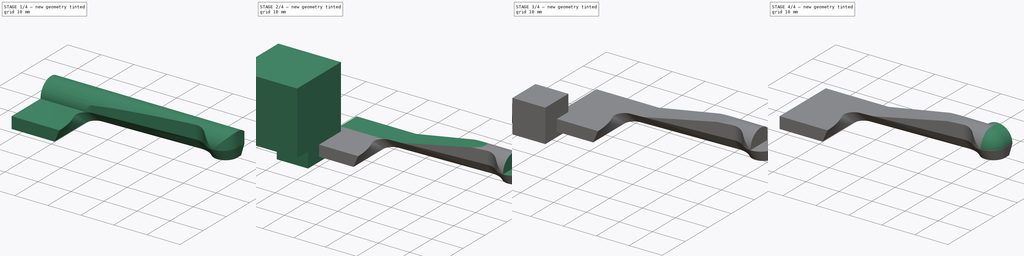
[diagram: build sequence overview — one tinted view per stage of 4, left to right]
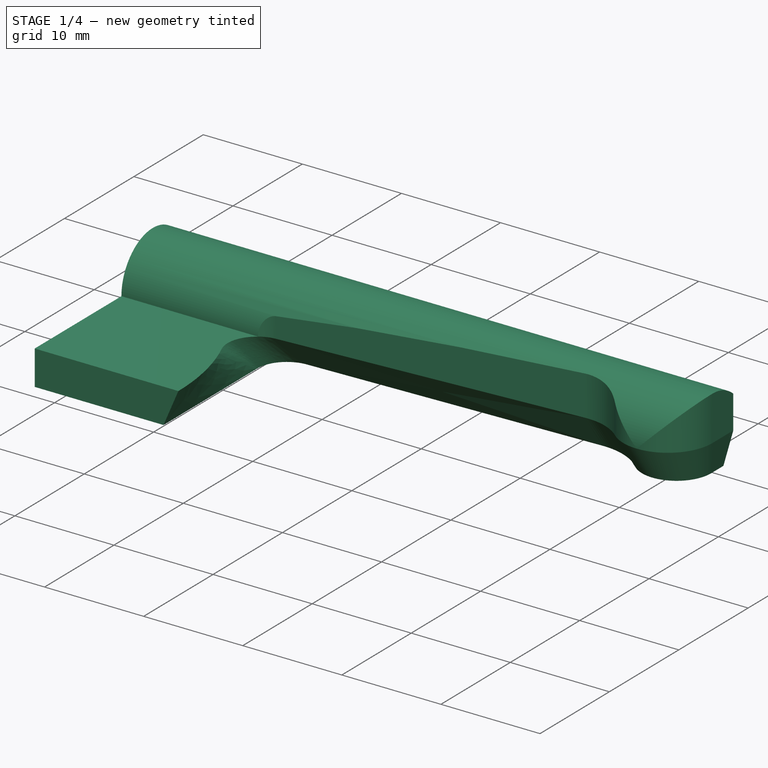
[diagram: stage 1 of 4 — iso view after this stage's code; geometry added in this stage tinted green]
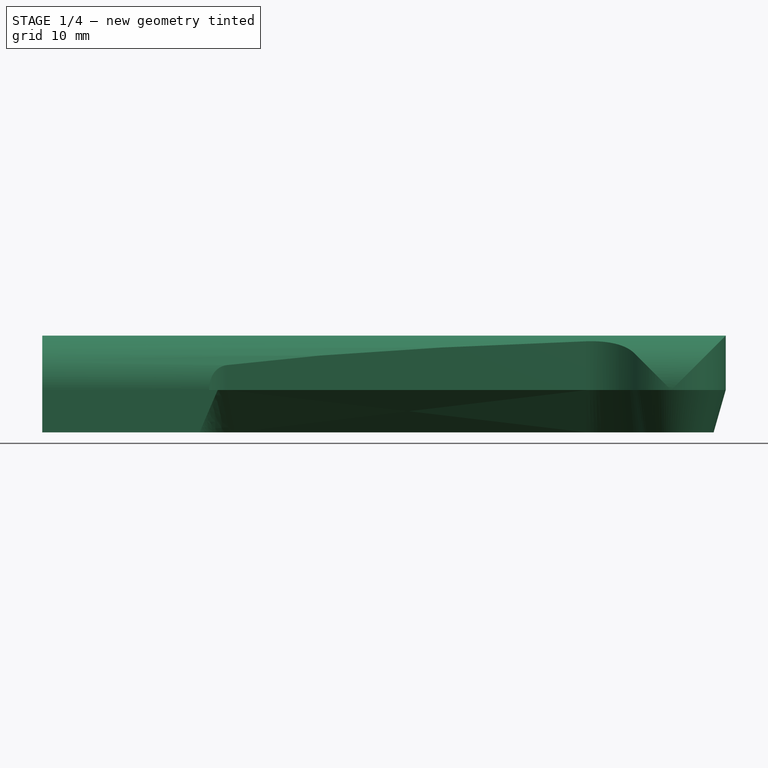
[diagram: stage 1 of 4 — front view after this stage's code; geometry added in this stage tinted green]
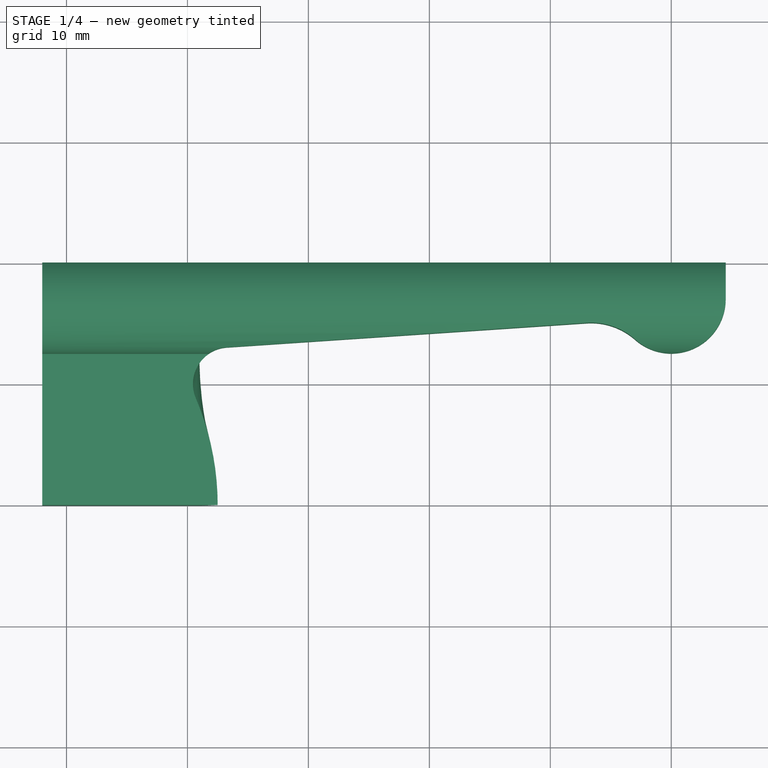
[diagram: stage 1 of 4 — top view after this stage's code; geometry added in this stage tinted green]
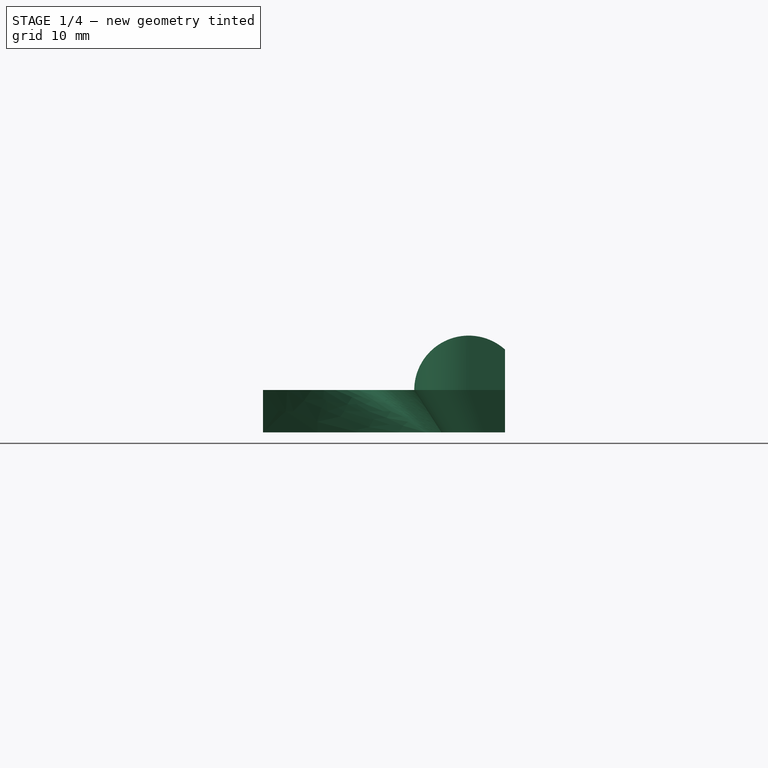
[diagram: stage 1 of 4 — right view after this stage's code; geometry added in this stage tinted green]
FCSTD DOCUMENT  (FreeCAD 0.18R16093 (Git))
Label: Spurhebel
License: All rights reserved
LicenseURL: http://en.wikipedia.org/wiki/All_rights_reserved
objects: Sketcher::SketchObject×4, Part::Box×2, Part::Cut×2, PartDesign::Pocket×2, PartDesign::AdditiveLoft×1, Part::Sphere×1, Part::Cylinder×1, Part::MultiFuse×1, PartDesign::Pad×1, PartDesign::Plane×1, PartDesign::Body×1
note: 21 computed .brp shape members not serialized (recipe doc carries the construction recipe); baked Part::Feature solids carry a one-line shape summary decoded from their .brp

FEATURE [Sketcher::SketchObject] Sketch
  MapMode = 5
  Support = -> [XY_Plane]
  sketch-geometry (14):
    g0: ArcOfCircle CenterX=23.4545 CenterY=10.0068 CenterZ=0 NormalX=0 NormalY=0 NormalZ=1 AngleXU=0 Radius=3 StartAngle=1.63793 EndAngle=3.54486
    g1: LineSegment StartX=8 StartY=20 StartZ=0 EndX=23.2533 EndY=20 EndZ=0
    g2: LineSegment StartX=23.2533 StartY=20 StartZ=0 EndX=53 EndY=20 EndZ=0
    g3: LineSegment StartX=23.2533 StartY=13 StartZ=0 EndX=53 EndY=15 EndZ=0
    g4: LineSegment StartX=8 StartY=0 StartZ=0 EndX=22.5 EndY=0 EndZ=0
    g5: LineSegment [constr] StartX=23.2533 StartY=13 StartZ=0 EndX=23.2533 EndY=20 EndZ=0
    g6: LineSegment [constr] StartX=0 StartY=17 StartZ=0 EndX=60 EndY=17 EndZ=0
    g7: LineSegment StartX=8 StartY=20 StartZ=0 EndX=8 EndY=0 EndZ=0
    g8: ArcOfCircle CenterX=4e-16 CenterY=0 CenterZ=0 NormalX=0 NormalY=0 NormalZ=1 AngleXU=0 Radius=22.5 StartAngle=0 EndAngle=0.403263
    g9: ArcOfCircle CenterX=53.3694 CenterY=9.50651 CenterZ=0 NormalX=0 NormalY=0 NormalZ=1 AngleXU=0 Radius=5.50589 StartAngle=0.846412 EndAngle=1.63793
    g10: ArcOfCircle CenterX=60 CenterY=17 CenterZ=0 NormalX=0 NormalY=0 NormalZ=1 AngleXU=0 Radius=4.5 StartAngle=3.988 EndAngle=6.28319
    g11: LineSegment StartX=53 StartY=20 StartZ=0 EndX=64.5 EndY=20 EndZ=0
    g12: LineSegment [constr] StartX=53 StartY=20 StartZ=0 EndX=53 EndY=15 EndZ=0
    g13: LineSegment StartX=64.5 StartY=20 StartZ=0 EndX=64.5 EndY=17 EndZ=0
  constraints (39):
    c: Horizontal(g1)
    c: Coincident(g2,g1)
    c: Tangent(g3,g0) = 1.5708
    c: Coincident(g5,g0)
    c: Coincident(g5,g1)
    c: Perpendicular(g1,g5)
    c: DistanceY(g5,g5) = 7
    c: DistanceY(g-1,g1) = 20
    c: PointOnObject(g6,g-2)
    c: DistanceX(g-1,g1) = 8
    c: DistanceX(g-1,g3) = 53
    c: Vertical(g7)
    c: PointOnObject(g7,g-1)
    c: Coincident(g7,g4)
    c: Coincident(g7,g1)
    c: Coincident(g8,g4)
    c: DistanceX(g-1,g4) = 22.5
    c: Tangent(g8,g0) = 1.5708
    c: PointOnObject(g4,g-1)
    c: Perpendicular(g8,g4)
    c: Radius(g8) = 22.5
    c: Radius(g0) = 3
    c: Tangent(g10,g9) = 1.5708
    c: Tangent(g9,g3) = 1.5708
    c: Coincident(g10,g6)
    c: DistanceX(g6,g6) = 60
    c: Radius(g10) = 4.5
    c: DistanceY(g3,g2) = 5
    c: Horizontal(g11)
    c: Coincident(g11,g2)
    c: Coincident(g12,g2)
    c: Coincident(g12,g3)
    c: Vertical(g12)
    c: Coincident(g13,g11)
    c: Tangent(g13,g10) = 1.5708
    c: Vertical(g13)
    c: Horizontal(g2)
    c: Horizontal(g6)
    c: DistanceY(g6,g1) = 3
FEATURE [Sketcher::SketchObject] Sketch001
  MapMode = 5
  Placement = pos=(0,0,-3.5) rot=(0,0,1;0rad)
  sketch-geometry (14):
    g0: ArcOfCircle CenterX=24 CenterY=13.5018 CenterZ=0 NormalX=0 NormalY=0 NormalZ=1 AngleXU=0 Radius=3 StartAngle=1.60514 EndAngle=3.14159
    g1: LineSegment StartX=8 StartY=20 StartZ=0 EndX=23.897 EndY=20 EndZ=0
    g2: LineSegment StartX=23.897 StartY=20 StartZ=0 EndX=53 EndY=20 EndZ=0
    g3: LineSegment StartX=23.897 StartY=16.5 StartZ=0 EndX=53 EndY=17.5 EndZ=0
    g4: LineSegment StartX=8 StartY=0 StartZ=0 EndX=21 EndY=0 EndZ=0
    g5: LineSegment [constr] StartX=23.897 StartY=16.5 StartZ=0 EndX=23.897 EndY=20 EndZ=0
    g6: LineSegment [constr] StartX=0 StartY=18.25 StartZ=0 EndX=60 EndY=18.25 EndZ=0
    g7: LineSegment StartX=8 StartY=20 StartZ=0 EndX=8 EndY=0 EndZ=0
    g8: ArcOfCircle CenterX=53.2142 CenterY=11.2659 CenterZ=0 NormalX=0 NormalY=0 NormalZ=1 AngleXU=0 Radius=6.23783 StartAngle=0.799802 EndAngle=1.60514
    g9: ArcOfCircle CenterX=60 CenterY=18.25 CenterZ=0 NormalX=0 NormalY=0 NormalZ=1 AngleXU=0 Radius=3.5 StartAngle=3.94139 EndAngle=6.28319
    g10: LineSegment StartX=53 StartY=20 StartZ=0 EndX=63.5 EndY=20 EndZ=0
    g11: LineSegment [constr] StartX=53 StartY=20 StartZ=0 EndX=53 EndY=17.5 EndZ=0
    g12: LineSegment StartX=63.5 StartY=20 StartZ=0 EndX=63.5 EndY=18.25 EndZ=0
    g13: LineSegment StartX=21 StartY=0 StartZ=0 EndX=21 EndY=13.5018 EndZ=0
  constraints (37):
    c: Horizontal(g1)
    c: Coincident(g2,g1)
    c: Tangent(g3,g0) = 1.5708
    c: Coincident(g5,g0)
    c: Coincident(g5,g1)
    c: Perpendicular(g1,g5)
    c: DistanceY(g5,g5) = 3.5
    c: Symmetric(g1,g0,g6)
    c: DistanceY(g-1,g1) = 20
    c: PointOnObject(g6,g-2)
    c: DistanceX(g-1,g1) = 8
    c: DistanceX(g-1,g3) = 53
    c: Vertical(g7)
    c: PointOnObject(g7,g-1)
    c: Coincident(g7,g4)
    c: Coincident(g7,g1)
    c: DistanceX(g-1,g4) = 21
    c: PointOnObject(g4,g-1)
    c: Radius(g0) = 3
    c: Tangent(g9,g8) = 1.5708
    c: Tangent(g8,g3) = 1.5708
    c: Coincident(g9,g6)
    c: DistanceX(g6,g6) = 60
    c: Radius(g9) = 3.5
    c: DistanceY(g3,g2) = 2.5
    c: Horizontal(g10)
    c: Coincident(g10,g2)
    c: Coincident(g11,g2)
    c: Coincident(g11,g3)
    c: Vertical(g11)
    c: Coincident(g12,g10)
    c: Tangent(g12,g9) = 1.5708
    c: Vertical(g12)
    c: Horizontal(g2)
    c: Coincident(g13,g4)
    c: Vertical(g13)
    c: Tangent(g13,g0) = 1.5708
FEATURE [PartDesign::AdditiveLoft] AdditiveLoft
  Closed = false
  Placement = pos=(0,0,-3.5) rot=(0,0,1;0rad)
  Profile = -> Sketch001
  Ruled = false
  Sections = -> [Sketch]
FEATURE [PartDesign::Pad] Pad
  BaseFeature = -> AdditiveLoft
  Length = 10
  Length2 = 100
  Placement = pos=(0,0,-3.5) rot=(0,0,1;0rad)
  Profile = -> AdditiveLoft [Face3]
  Type = 0
FEATURE [PartDesign::Plane] DatumPlane
  AttachmentOffset = pos=(0,0,120) rot=(0,0,1;0rad)
  Length = 34.899
  MapMode = 5
  Placement = pos=(120,-2.66e-14,2.66e-14) rot=(0.57735,0.57735,0.57735;2.0944rad)
  ResizeMode = 0
  Support = -> [YZ_Plane]
  Width = 24.899
FEATURE [Sketcher::SketchObject] Sketch002
  MapMode = 5
  Placement = pos=(120,-2.66e-14,2.66e-14) rot=(0.57735,0.57735,0.57735;2.0944rad)
  Support = -> [DatumPlane]
  sketch-geometry (5):
    g0: ArcOfCircle CenterX=17 CenterY=0 CenterZ=0 NormalX=0 NormalY=0 NormalZ=1 AngleXU=0 Radius=4.5 StartAngle=0 EndAngle=3.14159
    g1: LineSegment StartX=0 StartY=0 StartZ=0 EndX=12.5 EndY=6e-16 EndZ=0
    g2: LineSegment StartX=0 StartY=0 StartZ=0 EndX=0 EndY=40 EndZ=0
    g3: LineSegment StartX=0 StartY=40 StartZ=0 EndX=21.5 EndY=40 EndZ=0
    g4: LineSegment StartX=21.5 StartY=40 StartZ=0 EndX=21.5 EndY=0 EndZ=0
  constraints (14):
    c: PointOnObject(g0,g-1)
    c: PointOnObject(g0,g-1)
    c: PointOnObject(g0,g-1)
    c: Radius(g0) = 4.5
    c: DistanceX(g-1,g0) = 12.5
    c: Coincident(g1,g-1)
    c: Coincident(g1,g0)
    c: Coincident(g2,g1)
    c: PointOnObject(g2,g-2)
    c: Coincident(g3,g2)
    c: Horizontal(g3)
    c: Coincident(g4,g3)
    c: Tangent(g0,g4) = 1.5708
    c: DistanceY(g4,g4) = 40
FEATURE [PartDesign::Pocket] Pocket
  BaseFeature = -> Pad
  Length = 109
  Length2 = 100
  Placement = pos=(0,0,-3.5) rot=(0,0,1;0rad)
  Profile = -> Sketch002
  Type = 1
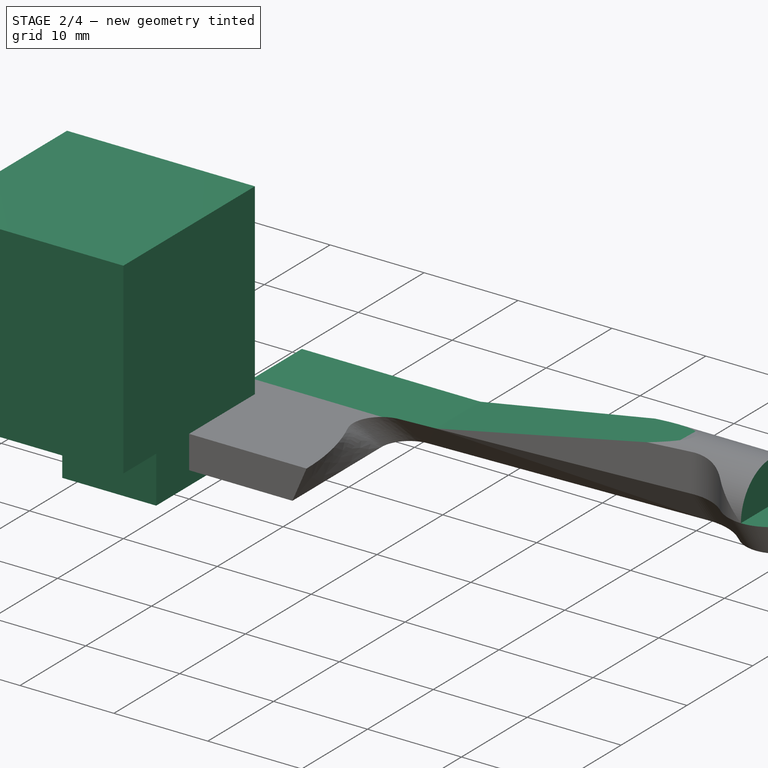
[diagram: stage 2 of 4 — iso view after this stage's code; geometry added in this stage tinted green]
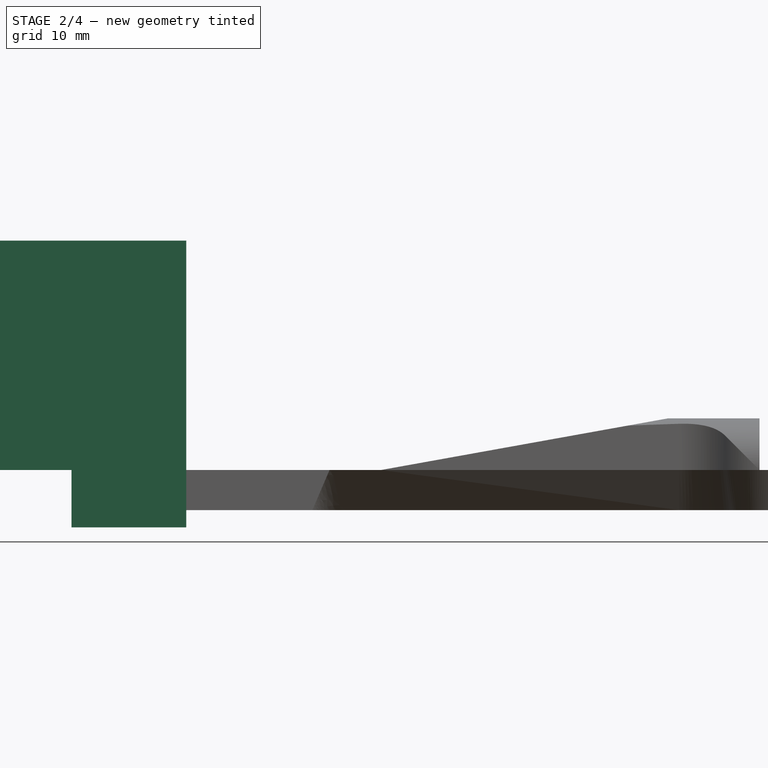
[diagram: stage 2 of 4 — front view after this stage's code; geometry added in this stage tinted green]
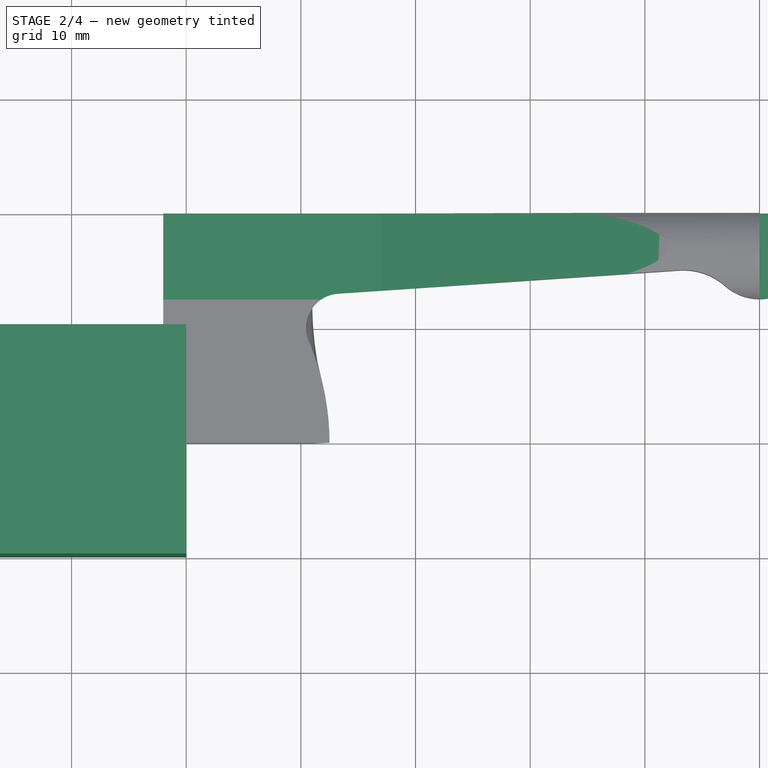
[diagram: stage 2 of 4 — top view after this stage's code; geometry added in this stage tinted green]
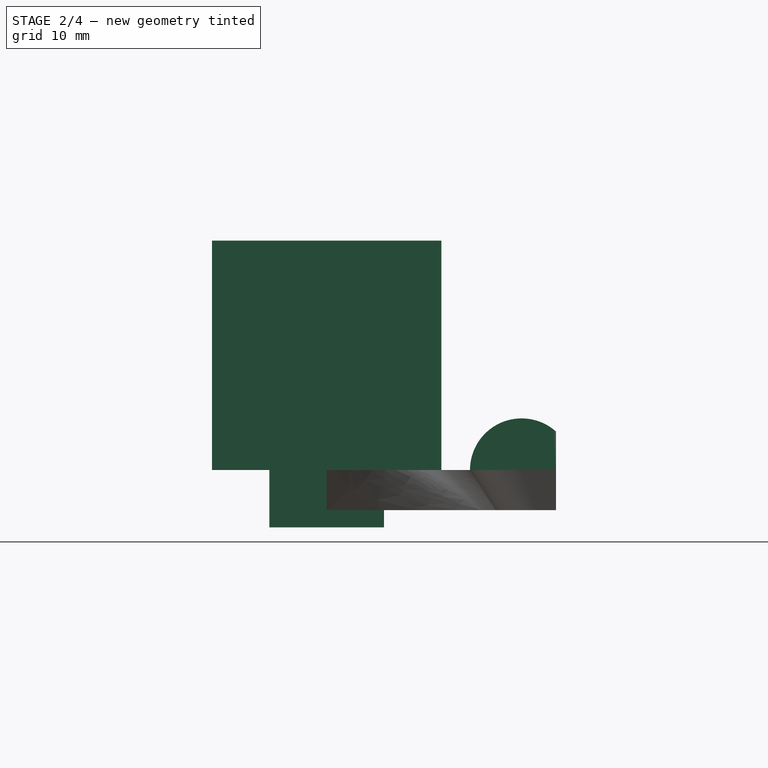
[diagram: stage 2 of 4 — right view after this stage's code; geometry added in this stage tinted green]
FEATURE [Part::Box] Box  label="Cube"
  AttacherType = Attacher::AttachEngine3D
  Height = 20
  Length = 20
  Placement = pos=(-10,-10,0) rot=(0,0,1;0rad)
  Width = 20
FEATURE [Part::Box] Box001  label="Cube001"
  AttacherType = Attacher::AttachEngine3D
  Height = 10
  Length = 10
  Placement = pos=(0,-5,-5) rot=(0,0,1;0rad)
  Width = 10
FEATURE [Sketcher::SketchObject] Sketch003
  MapMode = 5
  Placement = pos=(0,0,0) rot=(1,0,0;1.5708rad)
  Support = -> [XZ_Plane]
  sketch-geometry (8):
    g0: LineSegment StartX=27 StartY=0 StartZ=0 EndX=52 EndY=4.5 EndZ=0
    g1: LineSegment StartX=0 StartY=20 StartZ=0 EndX=110 EndY=20 EndZ=0
    g2: LineSegment StartX=0 StartY=0 StartZ=0 EndX=27 EndY=0 EndZ=0
    g3: LineSegment StartX=0 StartY=20 StartZ=0 EndX=0 EndY=0 EndZ=0
    g4: LineSegment StartX=52 StartY=4.5 StartZ=0 EndX=60 EndY=4.5 EndZ=0
    g5: LineSegment StartX=60 StartY=4.5 StartZ=0 EndX=60 EndY=0 EndZ=0
    g6: LineSegment StartX=60 StartY=0 StartZ=0 EndX=110 EndY=0 EndZ=0
    g7: LineSegment StartX=110 StartY=0 StartZ=0 EndX=110 EndY=20 EndZ=0
  constraints (23):
    c: PointOnObject(g0,g-1)
    c: Horizontal(g1)
    c: PointOnObject(g1,g-2)
    c: Coincident(g2,g-1)
    c: Coincident(g2,g0)
    c: Coincident(g3,g1)
    c: Coincident(g3,g2)
    c: DistanceX(g1,g1) = 110
    c: DistanceY(g2,g0) = 4.5
    c: DistanceY(g2,g1) = 20
    c: DistanceX(g2,g2) = 27
    c: Coincident(g4,g0)
    c: Horizontal(g4)
    c: Coincident(g5,g4)
    c: Vertical(g5)
    c: Coincident(g6,g5)
    c: Horizontal(g6)
    c: Coincident(g7,g6)
    c: Vertical(g7)
    c: Coincident(g7,g1)
    c: PointOnObject(g5,g-1)
    c: DistanceX(g2,g4) = 60
    c: DistanceX(g4,g4) = 8
FEATURE [PartDesign::Pocket] Pocket001
  BaseFeature = -> Pocket
  Length = 5
  Length2 = 100
  Placement = pos=(0,0,-3.5) rot=(0,0,1;0rad)
  Profile = -> Sketch003
  Type = 1
FEATURE [PartDesign::Body] Body
  Group = -> [Sketch,Sketch001,AdditiveLoft,Pad,DatumPlane,Sketch002,Pocket,Sketch003,Pocket001]
  Origin = -> Origin
  Tip = -> Pocket001
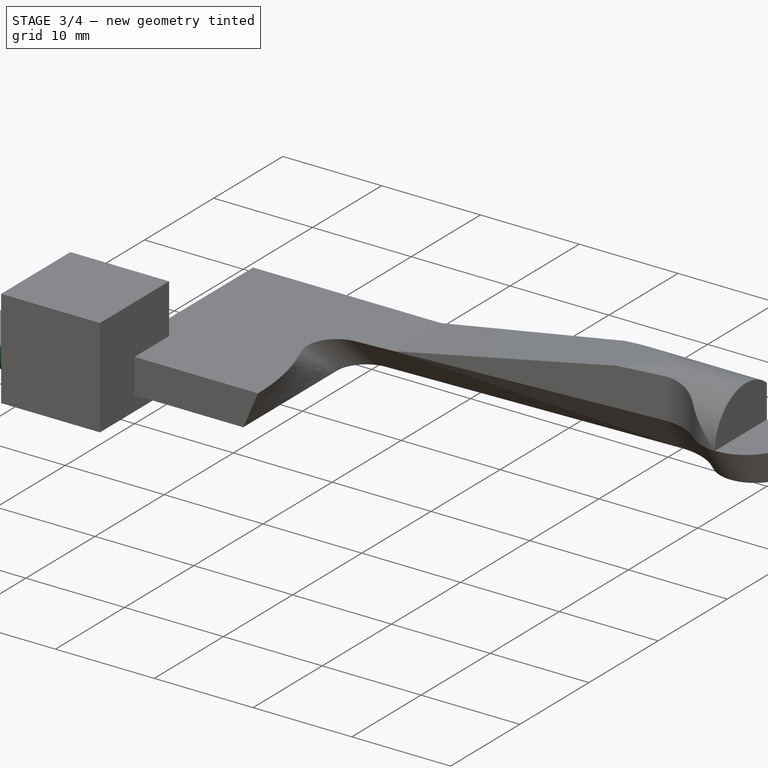
[diagram: stage 3 of 4 — iso view after this stage's code; geometry added in this stage tinted green]
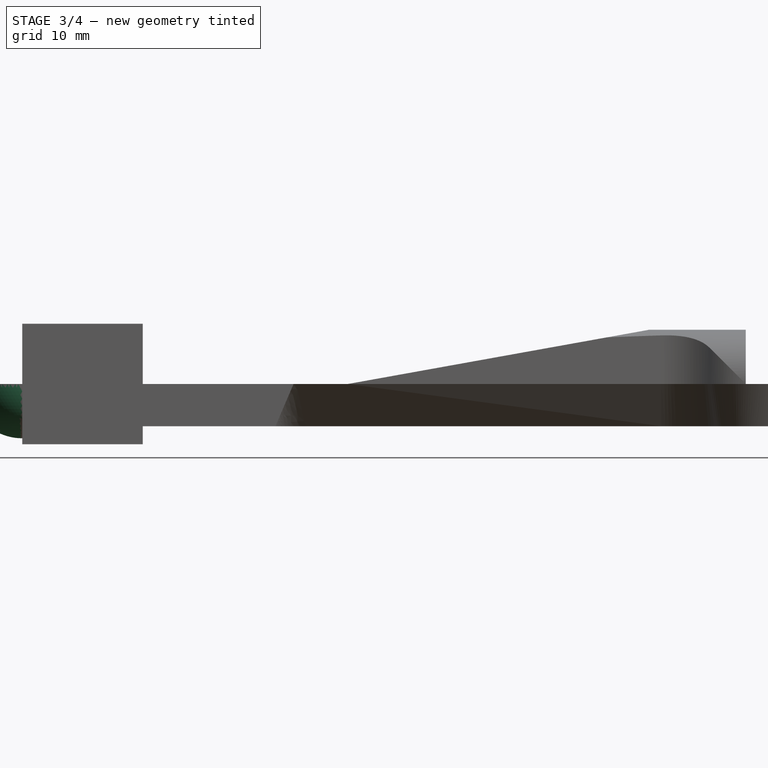
[diagram: stage 3 of 4 — front view after this stage's code; geometry added in this stage tinted green]
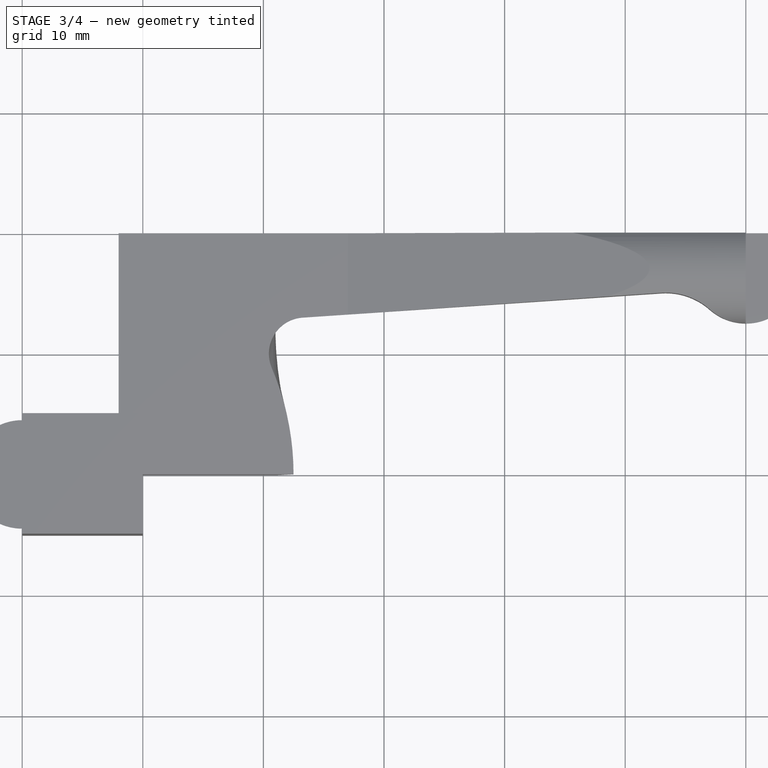
[diagram: stage 3 of 4 — top view after this stage's code; geometry added in this stage tinted green]
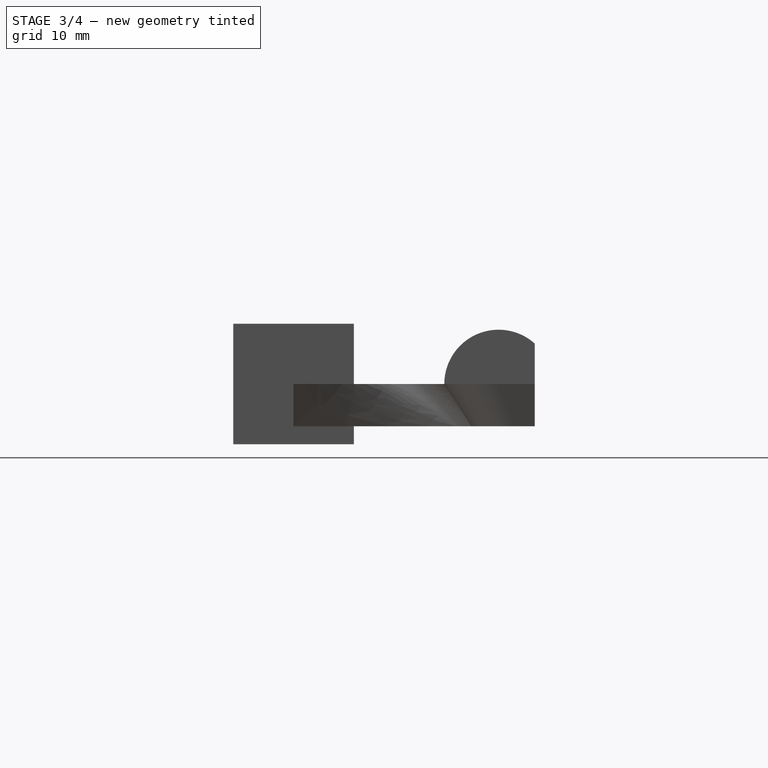
[diagram: stage 3 of 4 — right view after this stage's code; geometry added in this stage tinted green]
FEATURE [Part::Sphere] Sphere
  Angle1 = -90
  Angle2 = 90
  Angle3 = 360
  AttacherType = Attacher::AttachEngine3D
  Radius = 4.5
FEATURE [Part::Cut] Cut
  Base = -> Sphere
  Tool = -> Box
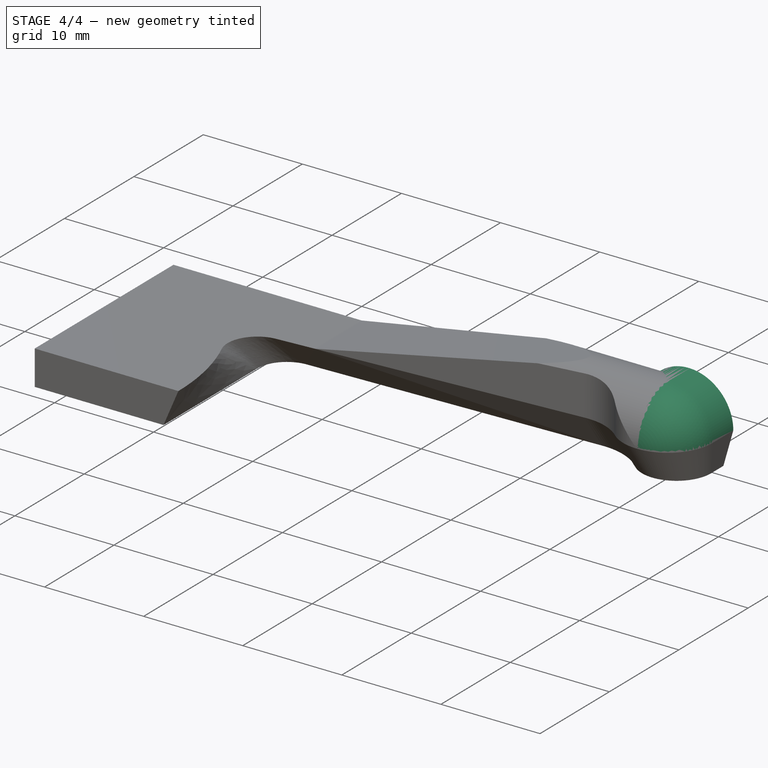
[diagram: stage 4 of 4 — iso view after this stage's code; geometry added in this stage tinted green]
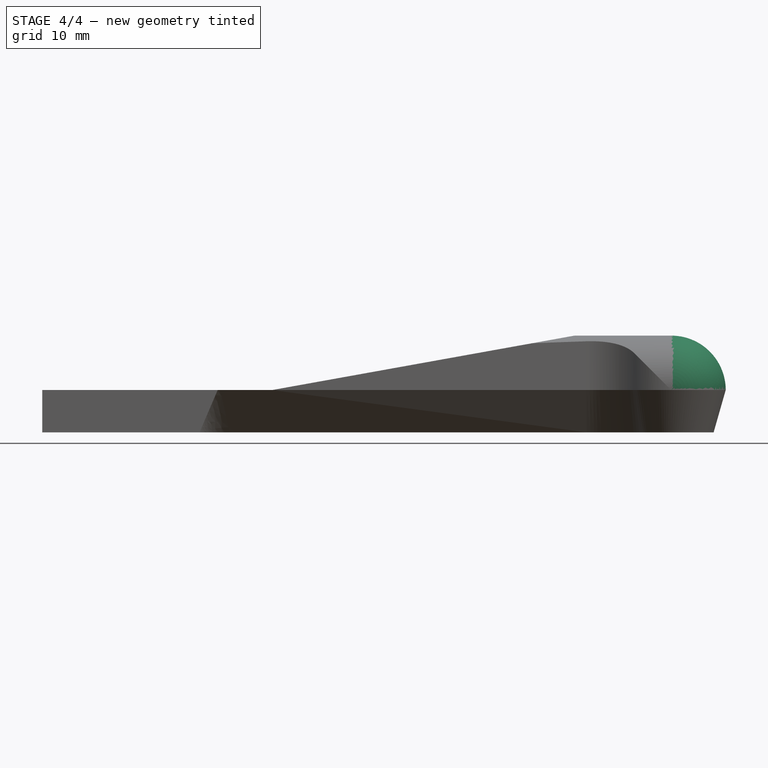
[diagram: stage 4 of 4 — front view after this stage's code; geometry added in this stage tinted green]
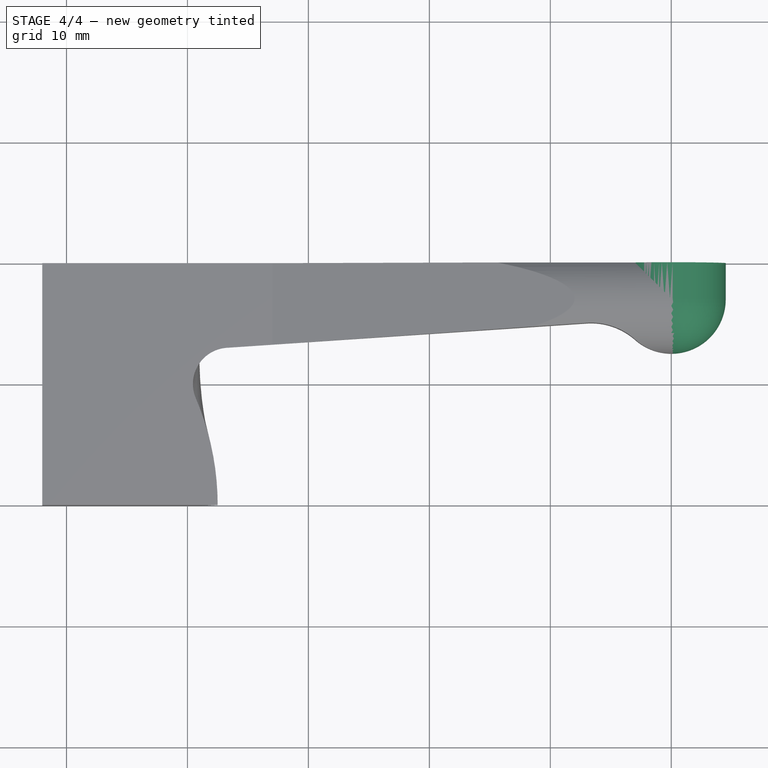
[diagram: stage 4 of 4 — top view after this stage's code; geometry added in this stage tinted green]
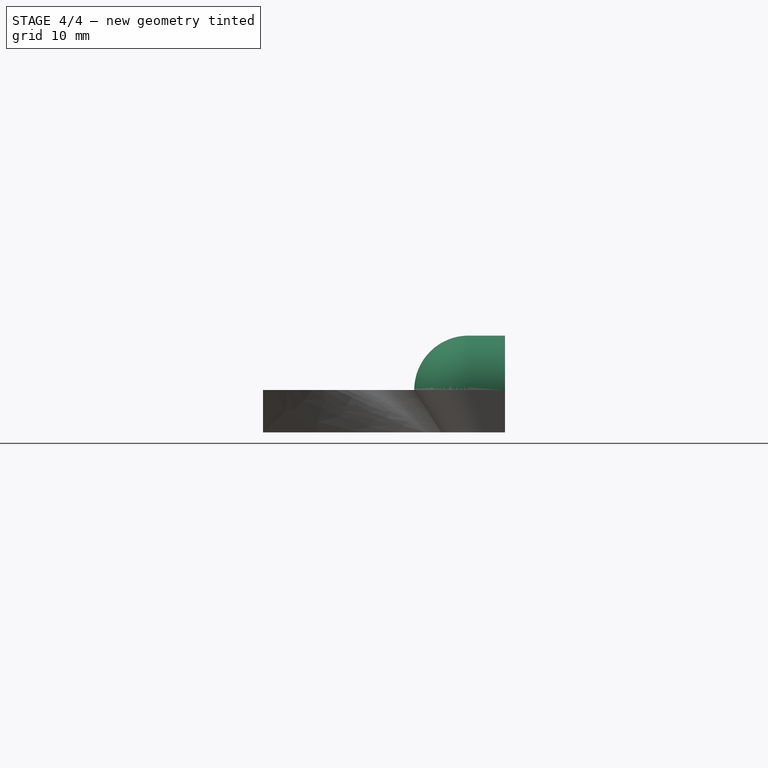
[diagram: stage 4 of 4 — right view after this stage's code; geometry added in this stage tinted green]
FEATURE [Part::Cylinder] Cylinder
  Angle = 360
  AttacherType = Attacher::AttachEngine3D
  Height = 3
  Radius = 4.5
FEATURE [Part::MultiFuse] Fusion
  Placement = pos=(0,0,0) rot=(-1,0,0;1.5708rad)
  Shapes = -> [Cylinder,Cut]
FEATURE [Part::Cut] Cut001
  Base = -> Fusion
  Placement = pos=(60,17,1.3e-14) rot=(0,1,0;1.5708rad)
  Tool = -> Box001
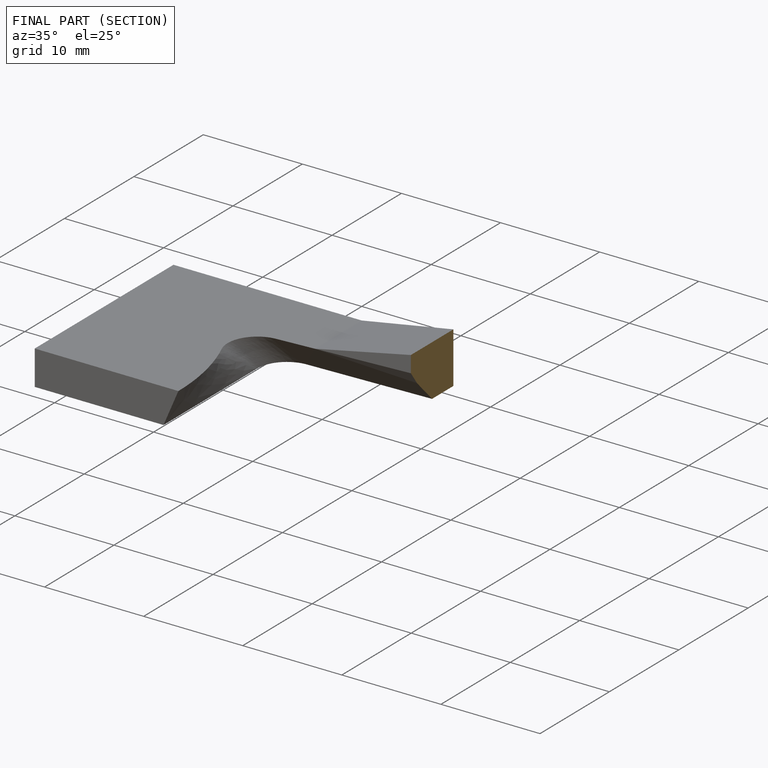
[diagram: finished part — half-section view (interior)]
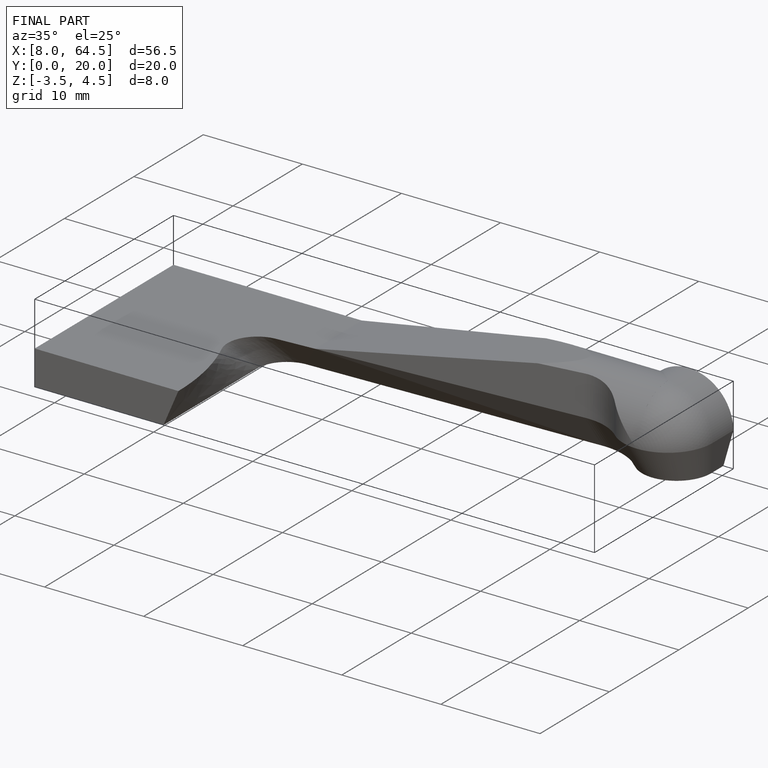
[diagram: finished part — iso view with bounding-box wireframe]
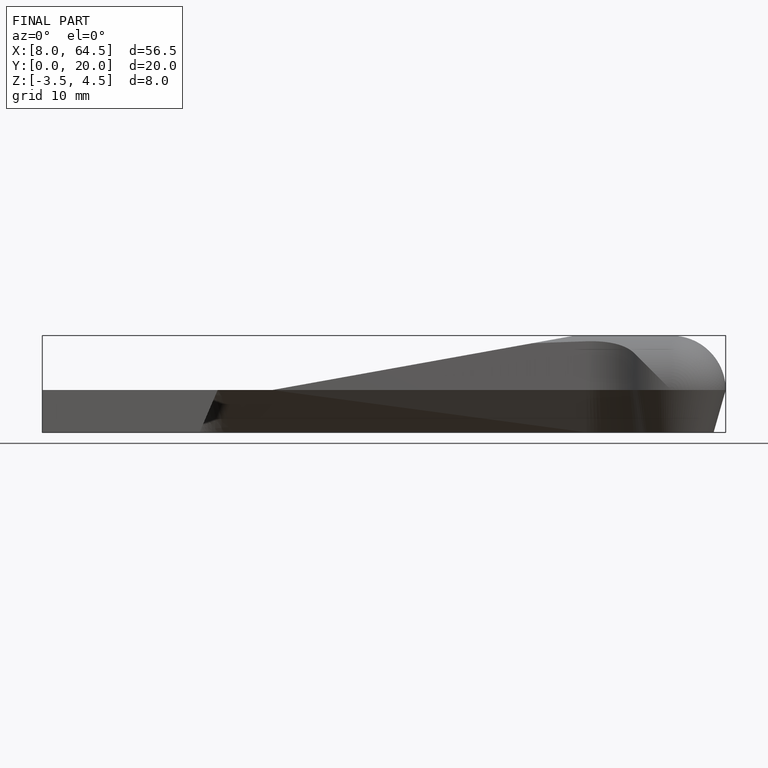
[diagram: finished part — front view with bounding-box wireframe]
